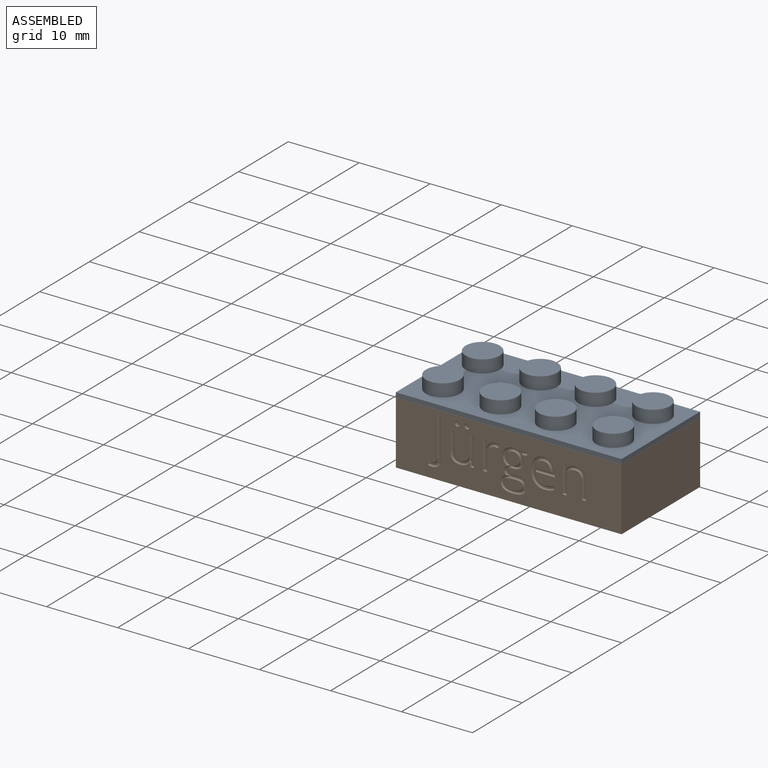
[diagram: assembled view]
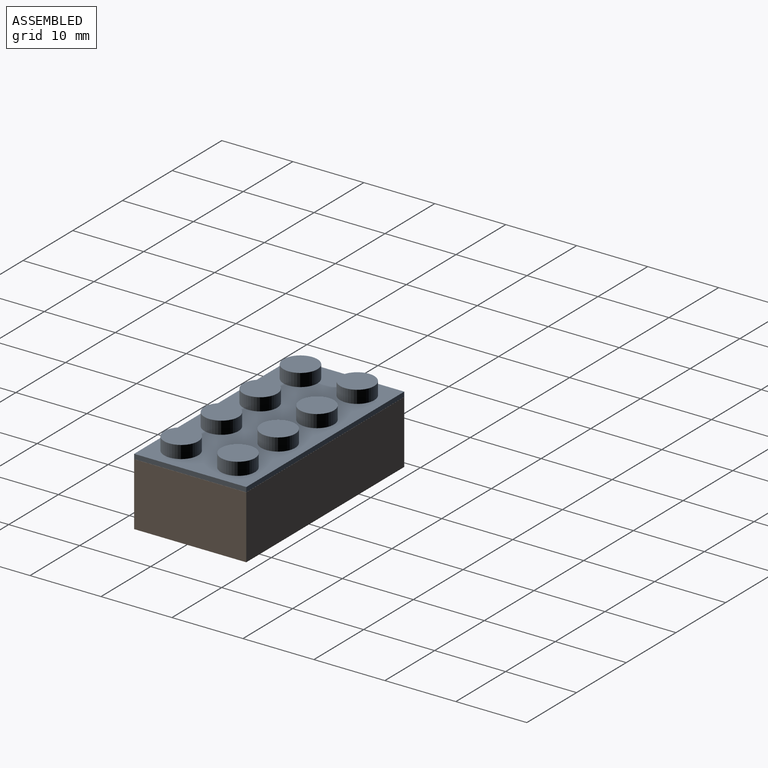
[diagram: assembled view, second angle]
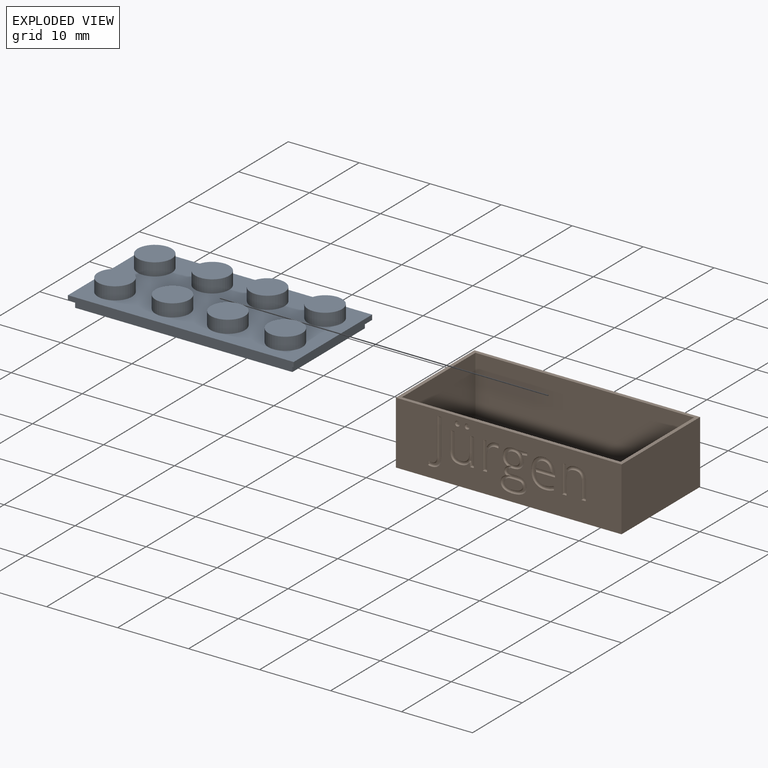
[diagram: exploded view]
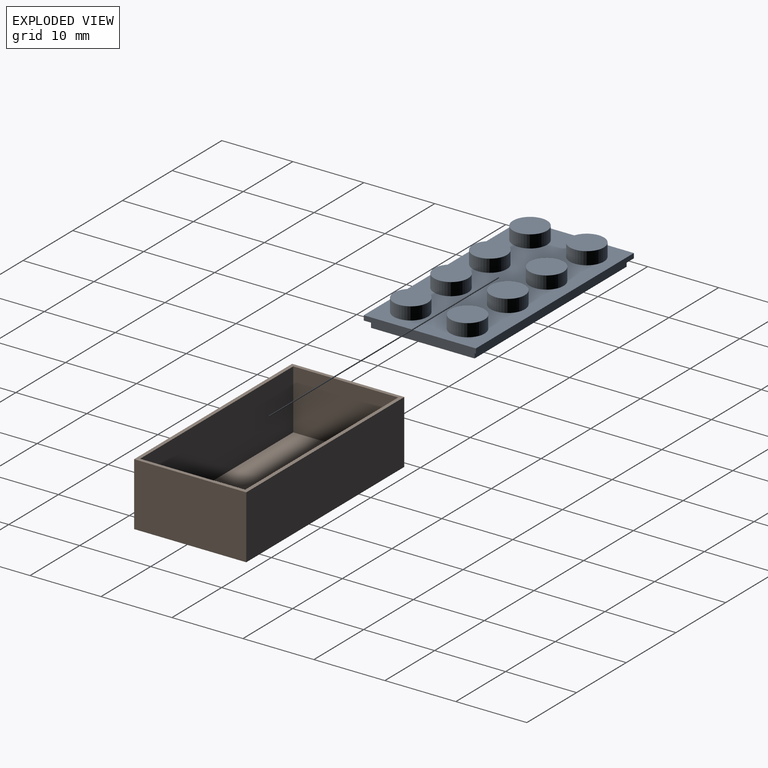
[diagram: exploded view, second angle]
ASSEMBLY  parts=2 mates=2
PART A: 27 faces, bbox 31.8x15.8x3.5 mm
  f0: plane 31.8x0.67mm, normal (0,1,0), area 21.3mm2, adj f1,f3,f4,f5
  f1: plane 15.8x0.67mm, normal (-1,0,0), area 10.6mm2, adj f0,f2,f4,f5
  f2: plane 31.8x0.67mm, normal (0,-1,0), area 21.3mm2, adj f1,f3,f4,f5
  f3: plane 15.8x0.67mm, normal (1,0,0), area 10.6mm2, adj f0,f2,f4,f5
  f4: plane 31.8x15.8mm, normal (0,0,1), area 357.7mm2, adj f0,f1,f2,f3,f6,f8,f10,f12
  f5: plane 31.8x15.8mm, normal (0,0,-1), area 55.7mm2, adj f0,f1,f2,f3,f22,f23,f24,f25
  f6: cylinder r=2.4mm len=4.8mm, axis (0,0,-1), area 27.1mm2, adj f4,f7
  f7: plane 4.8x4.8mm, normal (0,0,1), area 18.1mm2, adj f6
  f8: cylinder r=2.4mm len=4.8mm, axis (0,0,-1), area 27.1mm2, adj f4,f9
  f9: plane 4.8x4.8mm, normal (0,0,1), area 18.1mm2, adj f8
  f10: cylinder r=2.4mm len=4.8mm, axis (0,0,-1), area 27.1mm2, adj f4,f11
  f11: plane 4.8x4.8mm, normal (0,0,1), area 18.1mm2, adj f10
  f12: cylinder r=2.4mm len=4.8mm, axis (0,0,-1), area 27.1mm2, adj f4,f13
  f13: plane 4.8x4.8mm, normal (0,0,1), area 18.1mm2, adj f12
  f14: cylinder r=2.4mm len=4.8mm, axis (0,0,-1), area 27.1mm2, adj f4,f15
  f15: plane 4.8x4.8mm, normal (0,0,1), area 18.1mm2, adj f14
  f16: cylinder r=2.4mm len=4.8mm, axis (0,0,-1), area 27.1mm2, adj f4,f17
  f17: plane 4.8x4.8mm, normal (0,0,1), area 18.1mm2, adj f16
  f18: cylinder r=2.4mm len=4.8mm, axis (0,0,-1), area 27.1mm2, adj f4,f19
  f19: plane 4.8x4.8mm, normal (0,0,1), area 18.1mm2, adj f18
  f20: cylinder r=2.4mm len=4.8mm, axis (0,0,-1), area 27.1mm2, adj f4,f21
  f21: plane 4.8x4.8mm, normal (0,0,1), area 18.1mm2, adj f20
  f22: plane 14.6x1mm, normal (-1,0,0), area 14.6mm2, adj f5,f23,f25,f26
  f23: plane 30.6x1mm, normal (0,1,0), area 30.6mm2, adj f5,f22,f24,f26
  f24: plane 14.6x1mm, normal (1,0,0), area 14.6mm2, adj f5,f23,f25,f26
  f25: plane 30.6x1mm, normal (0,-1,0), area 30.6mm2, adj f5,f22,f24,f26
  f26: plane 30.6x14.6mm, normal (0,0,-1), area 446.8mm2, adj f22,f23,f24,f25
PART B: 162 faces, bbox 32x16x9.1 mm
  f0: plane 3.56x0.47mm, normal (0,-1,0), area 0.8mm2, adj f135,f136,f139,f140,f143,f144,f147
  f1: plane 3.56x0.44mm, normal (0,-1,0), area 0.7mm2, adj f106,f107,f108,f109,f110,f113,f114
  f2: plane 3.56x0.46mm, normal (0,-1,0), area 0.8mm2, adj f89,f90,f91,f92,f93,f94,f95
  f3: plane 3.28x2.84mm, normal (0,-1,0), area 1.1mm2, adj f26,f27,f28,f29,f30,f31,f32,f33
  f4: plane 32.04x9.14mm, normal (0,-1,0), area 240.4mm2, adj f5,f7,f8,f9,f28,f31,f32,f35
  f5: plane 31.8x15.8mm, normal (0,0,1), area 46.6mm2, adj f4,f6,f7,f8,f10,f11,f12,f13
  f6: plane 31.8x8.9mm, normal (0,1,0), area 283mm2, adj f5,f7,f8,f9
  f7: plane 15.8x8.9mm, normal (-1,0,0), area 140.6mm2, adj f4,f5,f6,f9
  f8: plane 15.8x8.9mm, normal (1,0,0), area 140.6mm2, adj f4,f5,f6,f9
  f9: plane 31.8x15.8mm, normal (0,0,-1), area 502.4mm2, adj f4,f6,f7,f8
  f10: plane 14.8x8.4mm, normal (-1,0,0), area 124.3mm2, adj f5,f11,f13,f14
  f11: plane 30.8x8.4mm, normal (0,-1,0), area 258.7mm2, adj f5,f10,f12,f14
  f12: plane 14.8x8.4mm, normal (1,0,0), area 124.3mm2, adj f5,f11,f13,f14
  f13: plane 30.8x8.4mm, normal (0,1,0), area 258.7mm2, adj f5,f10,f12,f14
  f14: plane 30.8x14.8mm, normal (0,0,1), area 455.8mm2, adj f10,f11,f12,f13
  f15: plane 3.02x2.2mm, normal (0,-1,0), area 0.9mm2, adj f49,f50,f52,f53,f54,f55,f56,f57
  f16: plane 2.65x1.53mm, normal (0,-1,0), area 3mm2, adj f26,f27,f29,f30,f33,f34,f37,f38
  f17: plane 3.7x2.95mm, normal (0,-1,0), area 1.7mm2, adj f70,f71,f72,f73,f74,f75,f76,f77
  f18: plane 3.63x2.18mm, normal (0,-1,0), area 0.9mm2, adj f96,f97,f98,f99,f100,f101,f102,f103
  f19: plane 3.63x2.2mm, normal (0,-1,0), area 0.9mm2, adj f137,f138,f141,f142,f145,f146,f148,f149
  f20: plane 0.31x0.26mm, normal (0,-1,0), area 0.1mm2, adj f127,f128,f129,f130,f131,f132,f133,f134
  f21: plane 0.31x0.26mm, normal (0,-1,0), area 0.1mm2, adj f119,f120,f121,f122,f123,f124,f125,f126
  f22: plane 1.12x0.47mm, normal (0,-1,0), area 0.1mm2, adj f111,f112,f115,f116,f117,f118
  f23: plane 6.27x1.48mm, normal (0,-1,0), area 1.5mm2, adj f152,f153,f154,f155,f156,f157,f158,f159
  f24: plane 1.8x1.78mm, normal (0,-1,0), area 2.6mm2, adj f64,f65,f66,f67,f68,f69
  f25: plane 2.12x1.22mm, normal (0,-1,0), area 1.9mm2, adj f84,f85,f86,f87,f88
  f26: bspline ~0.95x0.59mm, area 0.3mm2, adj f3,f16,f27,f29
  f27: bspline ~1.73x0.57mm, area 0.4mm2, adj f3,f16,f26,f30
  f28: bspline ~1.93x0.71mm, area 0.5mm2, adj f3,f4,f31,f32
  f29: bspline ~0.72x0.48mm, area 0.2mm2, adj f3,f16,f26,f33
  f30: bspline ~1.11x0.39mm, area 0.3mm2, adj f3,f16,f27,f34
  f31: bspline ~1.71x0.61mm, area 0.4mm2, adj f3,f4,f28,f35
  f32: bspline ~1.23x0.87mm, area 0.3mm2, adj f3,f4,f28,f36
  f33: bspline ~1.08x0.34mm, area 0.3mm2, adj f3,f16,f29,f37
  f34: bspline ~0.77x0.6mm, area 0.2mm2, adj f3,f16,f30,f38
  f35: bspline ~1.08x0.58mm, area 0.3mm2, adj f3,f4,f31,f39
  f36: bspline ~1.06x0.51mm, area 0.3mm2, adj f3,f4,f32,f40
  f37: cylinder r=0.2mm len=0.72mm, axis (1,0,0), area 0.2mm2, adj f3,f16,f33,f41
  f38: bspline ~0.97x0.55mm, area 0.2mm2, adj f3,f16,f34,f41,f42
  f39: bspline ~0.86x0.53mm, area 0.2mm2, adj f3,f4,f35,f42
  f40: bspline ~1.22x0.57mm, area 0.3mm2, adj f3,f4,f36,f43
  f41: bspline ~0.92x0.47mm, area 0.2mm2, adj f3,f16,f37,f38,f42,f44
  f42: bspline ~1.85x0.87mm, area 0.3mm2, adj f3,f4,f38,f39,f41,f44
  f43: cylinder r=0.2mm len=0.7mm, axis (-1,0,0), area 0.2mm2, adj f3,f4,f40,f45
  f44: bspline ~0.94x0.65mm, area 0.2mm2, adj f3,f4,f41,f42,f46
  f45: bspline ~0.7x0.28mm, area 0.2mm2, adj f3,f4,f43,f47
  f46: bspline ~0.47x0.27mm, area 0.1mm2, adj f3,f4,f44,f48
  f47: bspline ~0.48x0.41mm, area 0.1mm2, adj f3,f4,f45,f50
  f48: bspline ~0.48x0.32mm, area 0.1mm2, adj f3,f4,f46,f51
  f49: bspline ~0.57x0.26mm, area 0.1mm2, adj f4,f15,f50,f52
  f50: bspline ~1.01x0.92mm, area 0.2mm2, adj f3,f4,f15,f47,f49,f51,f53
  f51: bspline ~0.89x0.72mm, area 0.2mm2, adj f3,f4,f48,f50,f53
  f52: bspline ~1.71x0.65mm, area 0.4mm2, adj f4,f15,f49,f54
  f53: bspline ~1.3x0.94mm, area 0.2mm2, adj f4,f15,f50,f51,f55
  f54: bspline ~1.43x0.76mm, area 0.3mm2, adj f4,f15,f52,f56
  f55: bspline ~0.88x0.38mm, area 0.2mm2, adj f4,f15,f53,f57
  f56: bspline ~0.58x0.28mm, area 0.1mm2, adj f4,f15,f54,f58
  f57: bspline ~1.57x0.78mm, area 0.3mm2, adj f4,f15,f55,f59
  f58: bspline ~0.95x0.73mm, area 0.2mm2, adj f4,f15,f56,f60
  f59: bspline ~1.72x0.65mm, area 0.4mm2, adj f4,f15,f57,f61
  f60: cylinder r=0.2mm len=1.11mm, axis (0.99,0,0.12), area 0.3mm2, adj f4,f15,f58,f62
  f61: bspline ~1.14x0.39mm, area 0.2mm2, adj f4,f15,f59,f63
  f62: cylinder r=0.2mm len=0.38mm, axis (0,0,1), area 0.1mm2, adj f4,f15,f60,f63
  f63: cylinder r=0.2mm len=1.4mm, axis (-1,0,0), area 0.4mm2, adj f4,f15,f61,f62
  f64: bspline ~1.63x1.19mm, area 0.5mm2, adj f15,f24,f65,f66
  f65: bspline ~1.66x1.23mm, area 0.5mm2, adj f15,f24,f64,f67
  f66: bspline ~1.05x0.43mm, area 0.2mm2, adj f15,f24,f64,f68
  f67: bspline ~0.92x0.5mm, area 0.2mm2, adj f15,f24,f65,f69
  f68: bspline ~0.95x0.58mm, area 0.2mm2, adj f15,f24,f66,f69
  f69: bspline ~1.07x0.45mm, area 0.2mm2, adj f15,f24,f67,f68
  f70: cylinder r=0.2mm len=0.38mm, axis (0,0,1), area 0.1mm2, adj f4,f17,f71,f72
  f71: cylinder r=0.2mm len=2.93mm, axis (1,0,0), area 0.9mm2, adj f4,f17,f70,f73
  f72: bspline ~1.76x0.76mm, area 0.4mm2, adj f4,f17,f70,f74
  f73: bspline ~3.1x0.79mm, area 0.4mm2, adj f4,f17,f71,f75
  f74: bspline ~1.85x0.93mm, area 0.4mm2, adj f4,f17,f72,f76
  f75: bspline ~1.63x0.8mm, area 0.3mm2, adj f4,f17,f73,f77
  f76: bspline ~1.97x1.02mm, area 0.4mm2, adj f4,f17,f74,f78
  f77: bspline ~1.86x0.59mm, area 0.4mm2, adj f4,f17,f75,f79
  f78: bspline ~2.12x0.84mm, area 0.5mm2, adj f4,f17,f76,f80
  f79: cylinder r=0.2mm len=0.53mm, axis (0,0,1), area 0.1mm2, adj f4,f17,f77,f81
  f80: bspline ~2.14x0.7mm, area 0.5mm2, adj f4,f17,f78,f82
  f81: bspline ~0.83x0.44mm, area 0.2mm2, adj f4,f17,f79,f83
  f82: bspline ~2.08x0.86mm, area 0.5mm2, adj f4,f17,f80,f83
  f83: bspline ~0.86x0.26mm, area 0.2mm2, adj f4,f17,f81,f82
  f84: cylinder r=0.2mm len=2.49mm, axis (-1,0,0), area 0.7mm2, adj f17,f25,f85,f86
  f85: bspline ~1.71x0.63mm, area 0.3mm2, adj f17,f25,f84,f87
  f86: bspline ~2.66x0.6mm, area 0.3mm2, adj f17,f25,f84,f88
  f87: bspline ~1.13x0.69mm, area 0.3mm2, adj f17,f25,f85,f88
  f88: bspline ~1.13x0.54mm, area 0.3mm2, adj f17,f25,f86,f87
  f89: cylinder r=0.2mm len=3.96mm, axis (0,0,-1), area 1.2mm2, adj f2,f4,f90,f91
  f90: cylinder r=0.2mm len=0.49mm, axis (-1,0,0), area 0.1mm2, adj f2,f4,f89,f92
  f91: cylinder r=0.2mm len=0.6mm, axis (1,0,0), area 0.1mm2, adj f2,f4,f89,f93
  f92: cylinder r=0.2mm len=0.74mm, axis (-0.18,0,0.98), area 0.2mm2, adj f2,f4,f90,f94
  f93: cylinder r=0.2mm len=2.08mm, axis (0,0,1), area 0.6mm2, adj f2,f4,f91,f95
  f94: cylinder r=0.2mm len=0.29mm, axis (-1,0,0), area 0mm2, adj f2,f4,f92,f95,f96
  f95: bspline ~1.92x0.65mm, area 0.4mm2, adj f2,f4,f93,f94,f96,f98
  f96: bspline ~0.85x0.77mm, area 0.2mm2, adj f4,f18,f94,f95,f97,f98
  f97: bspline ~0.93x0.36mm, area 0.2mm2, adj f4,f18,f96,f99
  f98: bspline ~1.46x0.65mm, area 0.3mm2, adj f4,f18,f95,f96,f100
  f99: bspline ~1.65x0.63mm, area 0.3mm2, adj f4,f18,f97,f101
  f100: bspline ~1.08x0.46mm, area 0.3mm2, adj f4,f18,f98,f102
  f101: bspline ~1.65x0.65mm, area 0.4mm2, adj f4,f18,f99,f103
  f102: bspline ~1.02x0.51mm, area 0.3mm2, adj f4,f18,f100,f104
  f103: cylinder r=0.2mm len=2.58mm, axis (0,0,1), area 0.8mm2, adj f4,f18,f101,f105
  f104: cylinder r=0.2mm len=2.56mm, axis (0,0,-1), area 0.8mm2, adj f4,f18,f102,f105
  f105: cylinder r=0.2mm len=0.6mm, axis (1,0,0), area 0.1mm2, adj f4,f18,f103,f104
  f106: cylinder r=0.2mm len=3.96mm, axis (0,0,-1), area 1.2mm2, adj f1,f4,f107,f108
  f107: cylinder r=0.2mm len=0.6mm, axis (1,0,0), area 0.1mm2, adj f1,f4,f106,f109
  f108: cylinder r=0.2mm len=0.49mm, axis (-1,0,0), area 0.1mm2, adj f1,f4,f106,f110
  f109: cylinder r=0.2mm len=2.12mm, axis (0,0,1), area 0.6mm2, adj f1,f4,f107,f113
  f110: cylinder r=0.2mm len=0.93mm, axis (-0.09,0,1), area 0.2mm2, adj f1,f4,f108,f114
  f111: bspline ~0.59x0.26mm, area 0.1mm2, adj f4,f22,f112,f115
  f112: bspline ~1.21x0.79mm, area 0.3mm2, adj f4,f22,f111,f113,f116
  f113: bspline ~1.45x0.67mm, area 0.3mm2, adj f1,f4,f109,f112,f114,f116
  f114: cylinder r=0.2mm len=0.31mm, axis (-1,0,0), area 0mm2, adj f1,f4,f110,f113,f116
  f115: cylinder r=0.2mm len=0.59mm, axis (0.15,0,0.99), area 0.1mm2, adj f4,f22,f111,f117
  f116: bspline ~1.41x1.16mm, area 0.3mm2, adj f4,f22,f112,f113,f114,f118
  f117: bspline ~0.66x0.26mm, area 0.1mm2, adj f4,f22,f115,f118
  f118: bspline ~0.86x0.4mm, area 0.2mm2, adj f4,f22,f116,f117
  f119: bspline ~0.38x0.24mm, area 0.1mm2, adj f4,f21,f120,f121
  f120: bspline ~0.35x0.29mm, area 0.1mm2, adj f4,f21,f119,f122
  f121: bspline ~0.3x0.28mm, area 0.1mm2, adj f4,f21,f119,f123
  f122: bspline ~0.32x0.25mm, area 0.1mm2, adj f4,f21,f120,f124
  f123: bspline ~0.3x0.24mm, area 0.1mm2, adj f4,f21,f121,f125
  f124: bspline ~0.29x0.27mm, area 0.1mm2, adj f4,f21,f122,f126
  f125: bspline ~0.32x0.25mm, area 0.1mm2, adj f4,f21,f123,f126
  f126: bspline ~0.38x0.25mm, area 0.1mm2, adj f4,f21,f124,f125
  f127: bspline ~0.38x0.24mm, area 0.1mm2, adj f4,f20,f128,f129
  f128: bspline ~0.35x0.29mm, area 0.1mm2, adj f4,f20,f127,f130
  f129: bspline ~0.3x0.27mm, area 0.1mm2, adj f4,f20,f127,f131
  f130: bspline ~0.32x0.25mm, area 0.1mm2, adj f4,f20,f128,f132
  f131: bspline ~0.3x0.24mm, area 0.1mm2, adj f4,f20,f129,f133
  f132: bspline ~0.29x0.27mm, area 0.1mm2, adj f4,f20,f130,f134
  f133: bspline ~0.32x0.25mm, area 0.1mm2, adj f4,f20,f131,f134
  f134: bspline ~0.39x0.25mm, area 0.1mm2, adj f4,f20,f132,f133
  f135: cylinder r=0.2mm len=3.96mm, axis (0,0,1), area 1.2mm2, adj f0,f4,f136,f139
  f136: cylinder r=0.2mm len=0.49mm, axis (1,0,0), area 0.1mm2, adj f0,f4,f135,f140
  f137: bspline ~1.54x0.53mm, area 0.4mm2, adj f4,f19,f138,f141
  f138: cylinder r=0.2mm len=2.59mm, axis (0,0,-1), area 0.8mm2, adj f4,f19,f137,f142
  f139: cylinder r=0.2mm len=0.6mm, axis (-1,0,0), area 0.1mm2, adj f0,f4,f135,f143
  f140: cylinder r=0.2mm len=0.73mm, axis (0.16,0,-0.99), area 0.2mm2, adj f0,f4,f136,f144
  f141: bspline ~1.34x0.63mm, area 0.3mm2, adj f4,f19,f137,f145
  f142: cylinder r=0.2mm len=0.61mm, axis (-1,0,0), area 0.1mm2, adj f4,f19,f138,f146
  f143: cylinder r=0.2mm len=2.08mm, axis (0,0,-1), area 0.6mm2, adj f0,f4,f139,f147
  f144: cylinder r=0.2mm len=0.3mm, axis (1,0,0), area 0mm2, adj f0,f4,f140,f147,f148
  f145: bspline ~0.94x0.35mm, area 0.2mm2, adj f4,f19,f141,f148
  f146: cylinder r=0.2mm len=2.57mm, axis (0,0,1), area 0.8mm2, adj f4,f19,f142,f149
  f147: bspline ~1.93x0.65mm, area 0.4mm2, adj f0,f4,f143,f144,f148,f150
  f148: bspline ~0.83x0.75mm, area 0.2mm2, adj f4,f19,f144,f145,f147,f150
  f149: bspline ~1.02x0.51mm, area 0.3mm2, adj f4,f19,f146,f151
  f150: bspline ~1.54x0.76mm, area 0.3mm2, adj f4,f19,f147,f148,f151
  f151: bspline ~1.08x0.46mm, area 0.3mm2, adj f4,f19,f149,f150
  f152: bspline ~1.01x0.4mm, area 0.2mm2, adj f4,f23,f153,f154
  f153: cylinder r=0.2mm len=5.28mm, axis (0,0,-1), area 1.6mm2, adj f4,f23,f152,f155
  f154: bspline ~0.83x0.53mm, area 0.2mm2, adj f4,f23,f152,f156
  f155: cylinder r=0.2mm len=0.61mm, axis (-1,0,0), area 0.1mm2, adj f4,f23,f153,f157
  f156: bspline ~0.8x0.3mm, area 0.1mm2, adj f4,f23,f154,f158
  f157: cylinder r=0.2mm len=5.23mm, axis (0,0,1), area 1.6mm2, adj f4,f23,f155,f159
  f158: cylinder r=0.2mm len=0.52mm, axis (0,0,-1), area 0.1mm2, adj f4,f23,f156,f160
  f159: bspline ~1.64x0.64mm, area 0.3mm2, adj f4,f23,f157,f161
  f160: bspline ~0.78x0.32mm, area 0.1mm2, adj f4,f23,f158,f161
  f161: bspline ~1.37x0.54mm, area 0.3mm2, adj f4,f23,f159,f160
PLACE A rot(axis=(0.68,-0.59,-0.44),0deg) t=(-12.19,1.16,13.72)mm
PLACE B rot(axis=(0.68,-0.59,-0.44),0deg) t=(-12.19,1.16,4.8)mm
MATE planar B.f8 <-> A.f3  axis (1,0,0) through (3.71,1.16,9.25)mm
MATE planar B.f4 <-> A.f2  axis (0,-1,0) through (-12.21,-6.74,9.22)mm
